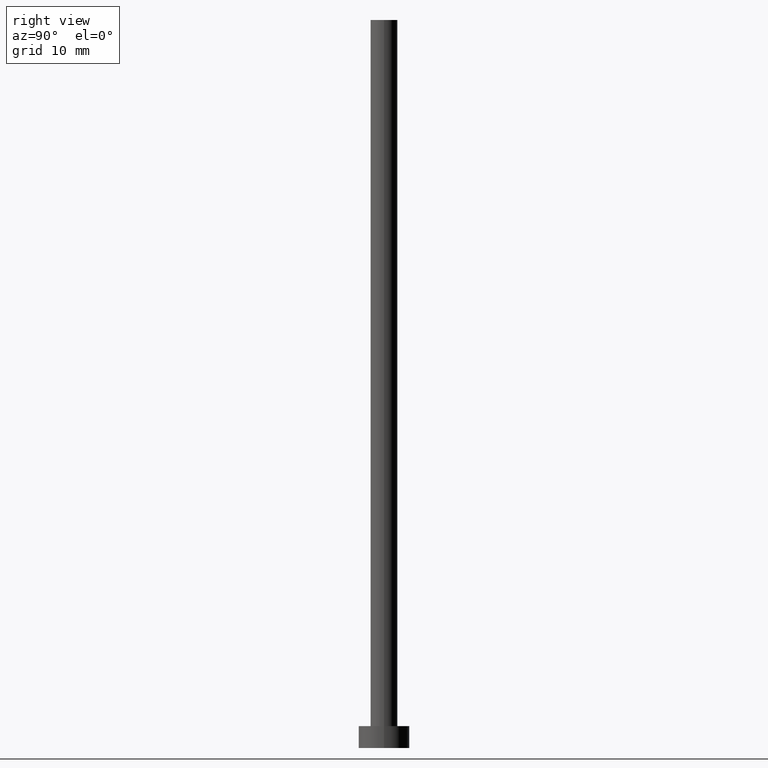
[diagram: clean part render]
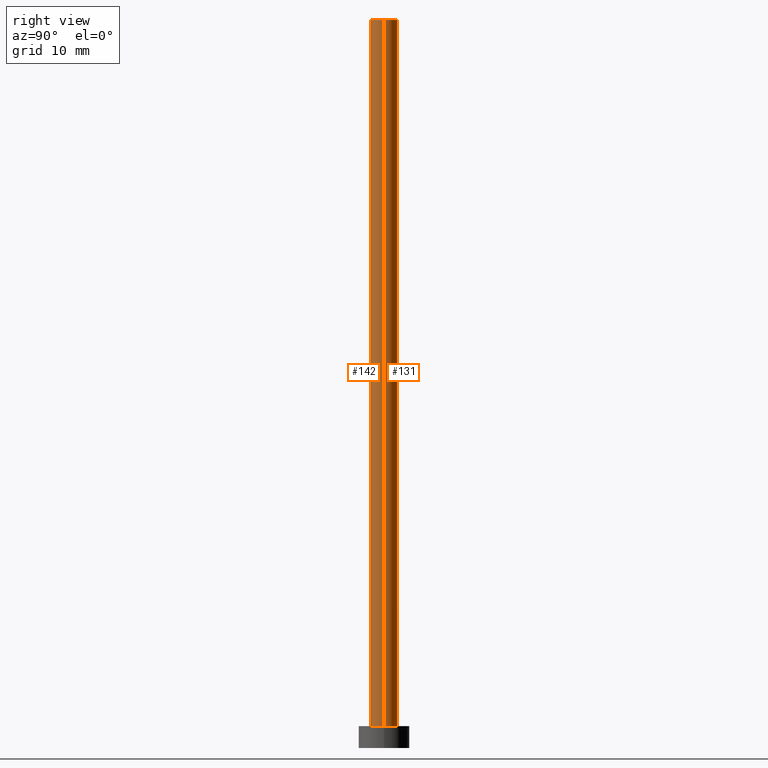
[diagram: same view with one multi-face feature highlighted, each face labeled with its STEP entity id]
A machine part, right view. The highlighted faces form ONE feature: a constant-radius fillet chain: 2 tangent blend faces with common blend radius 1.85 mm. The faces share edges in the B-rep.
Their STEP definitions:
[1] entity #142 (Cylinder):
#11 = CIRCLE ( 'NONE', #82, 1.850000000000000089 ) ;
#12 = EDGE_CURVE ( 'NONE', #87, #62, #11, .T. ) ;
#33 = CYLINDRICAL_SURFACE ( 'NONE', #139, 1.850000000000000089 ) ;
#35 = LINE ( 'NONE', #225, #115 ) ;
#39 = AXIS2_PLACEMENT_3D ( 'NONE', #48, #103, #205 ) ;
#48 = CARTESIAN_POINT ( 'NONE',  ( 0.000000000000000000, 0.000000000000000000, 3.000000000000000000 ) ) ;
#62 = VERTEX_POINT ( 'NONE', #122 ) ;
#65 = DIRECTION ( 'NONE',  ( -0.000000000000000000, -0.000000000000000000, -1.000000000000000000 ) ) ;
#68 = ORIENTED_EDGE ( 'NONE', *, *, #194, .T. ) ;
#77 = CARTESIAN_POINT ( 'NONE',  ( 0.000000000000000000, 0.000000000000000000, 100.0000000000000000 ) ) ;
#82 = AXIS2_PLACEMENT_3D ( 'NONE', #116, #193, #190 ) ;
#85 = CARTESIAN_POINT ( 'NONE',  ( -1.850000000000000089, 0.000000000000000000, 3.000000000000000000 ) ) ;
#87 = VERTEX_POINT ( 'NONE', #208 ) ;
#101 = CARTESIAN_POINT ( 'NONE',  ( 1.850000000000000089, 2.265596578422602607E-16, 3.000000000000000000 ) ) ;
#103 = DIRECTION ( 'NONE',  ( 0.000000000000000000, 0.000000000000000000, 1.000000000000000000 ) ) ;
#104 = EDGE_CURVE ( 'NONE', #112, #105, #178, .T. ) ;
#105 = VERTEX_POINT ( 'NONE', #101 ) ;
#108 = ORIENTED_EDGE ( 'NONE', *, *, #104, .T. ) ;
#112 = VERTEX_POINT ( 'NONE', #85 ) ;
#115 = VECTOR ( 'NONE', #65, 1000.000000000000000 ) ;
#116 = CARTESIAN_POINT ( 'NONE',  ( 0.000000000000000000, 0.000000000000000000, 100.0000000000000000 ) ) ;
#122 = CARTESIAN_POINT ( 'NONE',  ( 1.850000000000000089, 2.265596578422602607E-16, 100.0000000000000000 ) ) ;
#139 = AXIS2_PLACEMENT_3D ( 'NONE', #77, #177, #253 ) ;
#142 = ADVANCED_FACE ( 'NONE', ( #239 ), #33, .T. ) ;
#147 = LINE ( 'NONE', #183, #237 ) ;
#148 = ORIENTED_EDGE ( 'NONE', *, *, #233, .F. ) ;
#177 = DIRECTION ( 'NONE',  ( -0.000000000000000000, -0.000000000000000000, -1.000000000000000000 ) ) ;
#178 = CIRCLE ( 'NONE', #39, 1.850000000000000089 ) ;
#183 = CARTESIAN_POINT ( 'NONE',  ( 1.850000000000000089, 2.265596578422602607E-16, 100.0000000000000000 ) ) ;
#190 = DIRECTION ( 'NONE',  ( 1.000000000000000000, 0.000000000000000000, 0.000000000000000000 ) ) ;
#193 = DIRECTION ( 'NONE',  ( 0.000000000000000000, 0.000000000000000000, 1.000000000000000000 ) ) ;
#194 = EDGE_CURVE ( 'NONE', #87, #112, #35, .T. ) ;
#205 = DIRECTION ( 'NONE',  ( 1.000000000000000000, 0.000000000000000000, 0.000000000000000000 ) ) ;
#208 = CARTESIAN_POINT ( 'NONE',  ( -1.850000000000000089, 0.000000000000000000, 100.0000000000000000 ) ) ;
#210 = DIRECTION ( 'NONE',  ( -0.000000000000000000, -0.000000000000000000, -1.000000000000000000 ) ) ;
#212 = ORIENTED_EDGE ( 'NONE', *, *, #12, .F. ) ;
#225 = CARTESIAN_POINT ( 'NONE',  ( -1.850000000000000089, 0.000000000000000000, 100.0000000000000000 ) ) ;
#233 = EDGE_CURVE ( 'NONE', #62, #105, #147, .T. ) ;
#237 = VECTOR ( 'NONE', #210, 1000.000000000000000 ) ;
#239 = FACE_OUTER_BOUND ( 'NONE', #245, .T. ) ;
#245 = EDGE_LOOP ( 'NONE', ( #148, #212, #68, #108 ) ) ;
#253 = DIRECTION ( 'NONE',  ( -1.000000000000000000, 0.000000000000000000, 0.000000000000000000 ) ) ;
[2] entity #131 (Cylinder):
#8 = DIRECTION ( 'NONE',  ( 0.000000000000000000, 0.000000000000000000, 1.000000000000000000 ) ) ;
#9 = DIRECTION ( 'NONE',  ( 1.000000000000000000, 0.000000000000000000, 0.000000000000000000 ) ) ;
#15 = DIRECTION ( 'NONE',  ( -0.000000000000000000, -0.000000000000000000, -1.000000000000000000 ) ) ;
#19 = EDGE_CURVE ( 'NONE', #105, #112, #28, .T. ) ;
#28 = CIRCLE ( 'NONE', #221, 1.850000000000000089 ) ;
#31 = EDGE_LOOP ( 'NONE', ( #129, #187, #91, #164 ) ) ;
#35 = LINE ( 'NONE', #225, #115 ) ;
#42 = DIRECTION ( 'NONE',  ( 1.000000000000000000, 0.000000000000000000, 0.000000000000000000 ) ) ;
#62 = VERTEX_POINT ( 'NONE', #122 ) ;
#65 = DIRECTION ( 'NONE',  ( -0.000000000000000000, -0.000000000000000000, -1.000000000000000000 ) ) ;
#85 = CARTESIAN_POINT ( 'NONE',  ( -1.850000000000000089, 0.000000000000000000, 3.000000000000000000 ) ) ;
#87 = VERTEX_POINT ( 'NONE', #208 ) ;
#89 = CARTESIAN_POINT ( 'NONE',  ( 0.000000000000000000, 0.000000000000000000, 3.000000000000000000 ) ) ;
#91 = ORIENTED_EDGE ( 'NONE', *, *, #19, .T. ) ;
#101 = CARTESIAN_POINT ( 'NONE',  ( 1.850000000000000089, 2.265596578422602607E-16, 3.000000000000000000 ) ) ;
#105 = VERTEX_POINT ( 'NONE', #101 ) ;
#111 = DIRECTION ( 'NONE',  ( 0.000000000000000000, 0.000000000000000000, 1.000000000000000000 ) ) ;
#112 = VERTEX_POINT ( 'NONE', #85 ) ;
#115 = VECTOR ( 'NONE', #65, 1000.000000000000000 ) ;
#119 = DIRECTION ( 'NONE',  ( -1.000000000000000000, 0.000000000000000000, 0.000000000000000000 ) ) ;
#122 = CARTESIAN_POINT ( 'NONE',  ( 1.850000000000000089, 2.265596578422602607E-16, 100.0000000000000000 ) ) ;
#128 = CARTESIAN_POINT ( 'NONE',  ( 0.000000000000000000, 0.000000000000000000, 100.0000000000000000 ) ) ;
#129 = ORIENTED_EDGE ( 'NONE', *, *, #227, .F. ) ;
#131 = ADVANCED_FACE ( 'NONE', ( #135 ), #216, .T. ) ;
#135 = FACE_OUTER_BOUND ( 'NONE', #31, .T. ) ;
#147 = LINE ( 'NONE', #183, #237 ) ;
#164 = ORIENTED_EDGE ( 'NONE', *, *, #194, .F. ) ;
#182 = AXIS2_PLACEMENT_3D ( 'NONE', #128, #8, #42 ) ;
#183 = CARTESIAN_POINT ( 'NONE',  ( 1.850000000000000089, 2.265596578422602607E-16, 100.0000000000000000 ) ) ;
#187 = ORIENTED_EDGE ( 'NONE', *, *, #233, .T. ) ;
#192 = CIRCLE ( 'NONE', #182, 1.850000000000000089 ) ;
#194 = EDGE_CURVE ( 'NONE', #87, #112, #35, .T. ) ;
#201 = CARTESIAN_POINT ( 'NONE',  ( 0.000000000000000000, 0.000000000000000000, 100.0000000000000000 ) ) ;
#208 = CARTESIAN_POINT ( 'NONE',  ( -1.850000000000000089, 0.000000000000000000, 100.0000000000000000 ) ) ;
#210 = DIRECTION ( 'NONE',  ( -0.000000000000000000, -0.000000000000000000, -1.000000000000000000 ) ) ;
#216 = CYLINDRICAL_SURFACE ( 'NONE', #254, 1.850000000000000089 ) ;
#221 = AXIS2_PLACEMENT_3D ( 'NONE', #89, #111, #9 ) ;
#225 = CARTESIAN_POINT ( 'NONE',  ( -1.850000000000000089, 0.000000000000000000, 100.0000000000000000 ) ) ;
#227 = EDGE_CURVE ( 'NONE', #62, #87, #192, .T. ) ;
#233 = EDGE_CURVE ( 'NONE', #62, #105, #147, .T. ) ;
#237 = VECTOR ( 'NONE', #210, 1000.000000000000000 ) ;
#254 = AXIS2_PLACEMENT_3D ( 'NONE', #201, #15, #119 ) ;